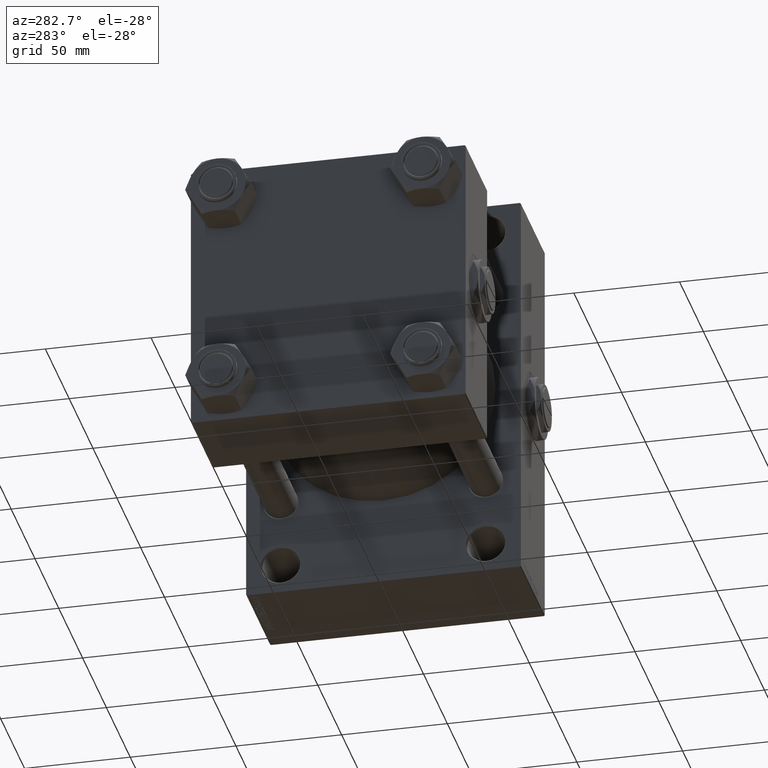
[diagram: clean part render]
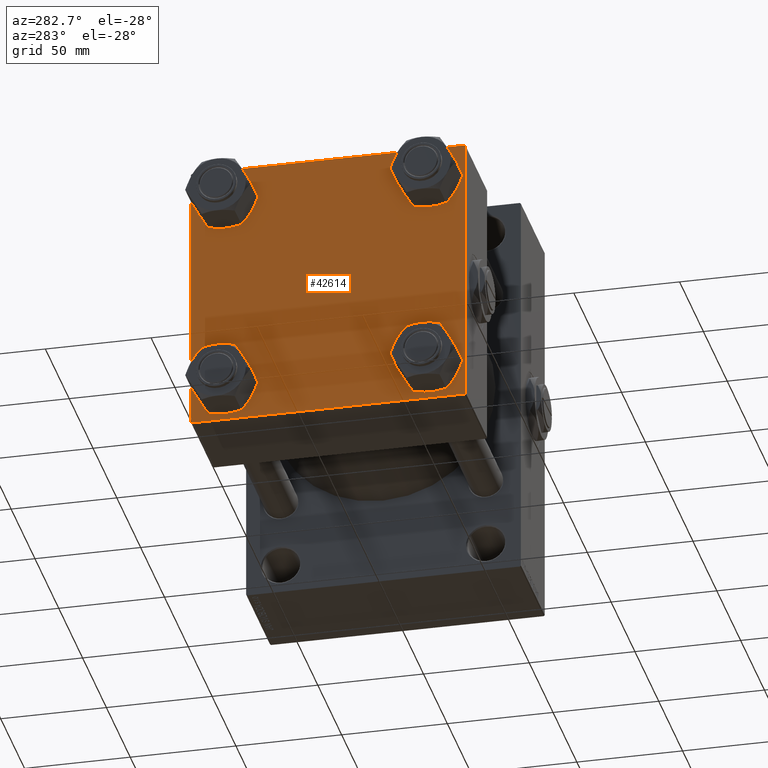
[diagram: same view with one face highlighted and labeled with its STEP entity id]
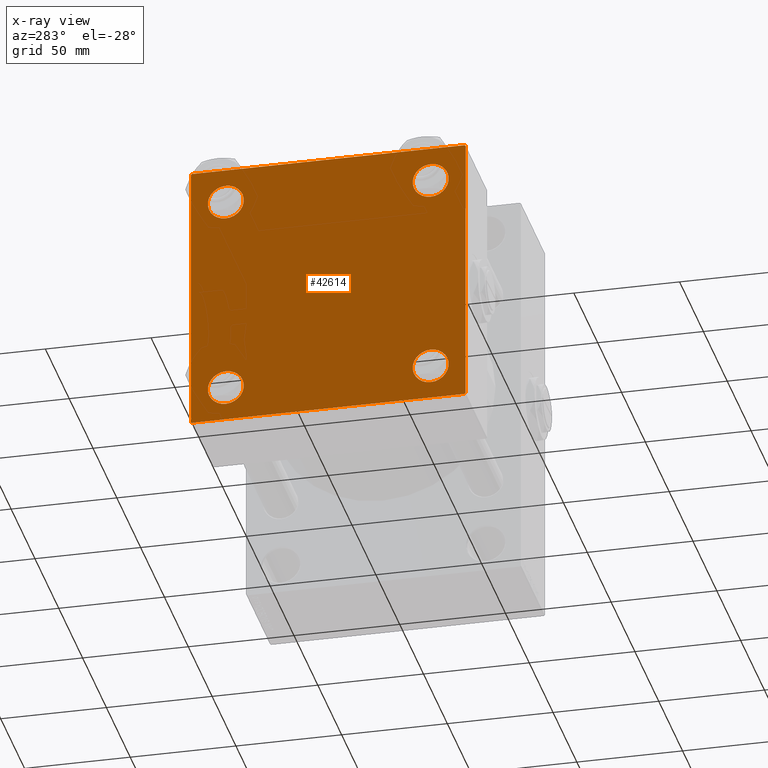
[diagram: x-ray of the same camera — body ghosted, the highlighted face saturated]
A machine part, auxiliary view. The second image highlights one B-rep face of the part: STEP entity #42614.
The next image is the same camera in x-ray: the body ghosted, the highlighted face saturated — about 0% of this face is hidden behind the body in this view.
In plain terms, the highlighted planar face has unit normal (-1, 0, 0).
Its self-contained STEP definition (entity closure, byte-faithful):
#970 = DIRECTION ( 'NONE',  ( 0.000000000000000000, -0.7071067811865279218, 0.7071067811865671127 ) ) ;
#1504 = AXIS2_PLACEMENT_3D ( 'NONE', #30231, #46076, #26449 ) ;
#1664 = VERTEX_POINT ( 'NONE', #6460 ) ;
#2142 = DIRECTION ( 'NONE',  ( 0.000000000000000000, 0.000000000000000000, 1.000000000000000000 ) ) ;
#2367 = VECTOR ( 'NONE', #970, 1000.000000000000000 ) ;
#2704 = CARTESIAN_POINT ( 'NONE',  ( 0.000000000000000000, 0.000000000000000000, 0.000000000000000000 ) ) ;
#2939 = CARTESIAN_POINT ( 'NONE',  ( 0.000000000000000000, -64.49999999999994316, -65.00000000000000000 ) ) ;
#2962 = DIRECTION ( 'NONE',  ( 1.000000000000000000, -0.000000000000000000, 0.000000000000000000 ) ) ;
#3183 = VERTEX_POINT ( 'NONE', #7844 ) ;
#3271 = EDGE_CURVE ( 'NONE', #3752, #20294, #20390, .T. ) ;
#3752 = VERTEX_POINT ( 'NONE', #30886 ) ;
#4630 = AXIS2_PLACEMENT_3D ( 'NONE', #2704, #37921, #34405 ) ;
#4949 = ORIENTED_EDGE ( 'NONE', *, *, #5387, .T. ) ;
#5387 = EDGE_CURVE ( 'NONE', #43437, #25798, #5936, .T. ) ;
#5936 = CIRCLE ( 'NONE', #43746, 8.500000000000007105 ) ;
#6001 = DIRECTION ( 'NONE',  ( 1.000000000000000000, -0.000000000000000000, 0.000000000000000000 ) ) ;
#6460 = CARTESIAN_POINT ( 'NONE',  ( 0.000000000000000000, 48.45000000000000995, -56.95000000000002416 ) ) ;
#6479 = FACE_BOUND ( 'NONE', #35804, .T. ) ;
#6984 = FACE_OUTER_BOUND ( 'NONE', #31242, .T. ) ;
#7107 = ORIENTED_EDGE ( 'NONE', *, *, #17164, .T. ) ;
#7750 = AXIS2_PLACEMENT_3D ( 'NONE', #36356, #43923, #31589 ) ;
#7844 = CARTESIAN_POINT ( 'NONE',  ( 0.000000000000000000, -65.00000000000000000, 64.50000000000000000 ) ) ;
#7858 = VERTEX_POINT ( 'NONE', #37650 ) ;
#8442 = ORIENTED_EDGE ( 'NONE', *, *, #38277, .T. ) ;
#8612 = VECTOR ( 'NONE', #9486, 1000.000000000000114 ) ;
#9071 = DIRECTION ( 'NONE',  ( 0.000000000000000000, 0.000000000000000000, -1.000000000000000000 ) ) ;
#9119 = DIRECTION ( 'NONE',  ( 0.000000000000000000, 0.000000000000000000, 1.000000000000000000 ) ) ;
#9132 = CARTESIAN_POINT ( 'NONE',  ( 0.000000000000000000, 64.49999999999997158, 65.00000000000001421 ) ) ;
#9486 = DIRECTION ( 'NONE',  ( 0.000000000000000000, 0.7071067811865474617, -0.7071067811865474617 ) ) ;
#9811 = CIRCLE ( 'NONE', #41157, 8.500000000000007105 ) ;
#9925 = EDGE_CURVE ( 'NONE', #47603, #14036, #48673, .T. ) ;
#10310 = VERTEX_POINT ( 'NONE', #2939 ) ;
#10414 = CARTESIAN_POINT ( 'NONE',  ( 0.000000000000000000, 48.45000000000000995, 39.95000000000000284 ) ) ;
#10497 = CARTESIAN_POINT ( 'NONE',  ( 0.000000000000000000, 48.45000000000000995, 48.45000000000001705 ) ) ;
#10644 = ORIENTED_EDGE ( 'NONE', *, *, #11951, .T. ) ;
#11201 = EDGE_CURVE ( 'NONE', #25798, #43437, #18981, .T. ) ;
#11951 = EDGE_CURVE ( 'NONE', #48811, #3752, #21049, .T. ) ;
#12811 = LINE ( 'NONE', #28417, #2367 ) ;
#13274 = LINE ( 'NONE', #21555, #37261 ) ;
#13387 = LINE ( 'NONE', #28750, #44099 ) ;
#13392 = EDGE_CURVE ( 'NONE', #30499, #38853, #27221, .T. ) ;
#13640 = CARTESIAN_POINT ( 'NONE',  ( 0.000000000000000000, -48.44999999999999574, -48.45000000000003126 ) ) ;
#13649 = CARTESIAN_POINT ( 'NONE',  ( 0.000000000000000000, 48.45000000000000995, 48.45000000000001705 ) ) ;
#13763 = DIRECTION ( 'NONE',  ( 0.000000000000000000, 0.000000000000000000, -1.000000000000000000 ) ) ;
#13956 = CARTESIAN_POINT ( 'NONE',  ( 0.000000000000000000, -48.44999999999999574, -48.45000000000003126 ) ) ;
#14035 = FACE_BOUND ( 'NONE', #38031, .T. ) ;
#14036 = VERTEX_POINT ( 'NONE', #42156 ) ;
#14039 = DIRECTION ( 'NONE',  ( 0.000000000000000000, 0.000000000000000000, 1.000000000000000000 ) ) ;
#15450 = CARTESIAN_POINT ( 'NONE',  ( 0.000000000000000000, -48.44999999999999574, 39.95000000000001705 ) ) ;
#15457 = ORIENTED_EDGE ( 'NONE', *, *, #11201, .T. ) ;
#16401 = VECTOR ( 'NONE', #9071, 1000.000000000000000 ) ;
#16480 = CARTESIAN_POINT ( 'NONE',  ( 0.000000000000000000, 64.49999999999997158, -64.99999999999998579 ) ) ;
#17164 = EDGE_CURVE ( 'NONE', #14036, #47603, #9811, .T. ) ;
#17447 = LINE ( 'NONE', #17689, #28512 ) ;
#17689 = CARTESIAN_POINT ( 'NONE',  ( 0.000000000000000000, 65.00000000000000000, -64.99999999999998579 ) ) ;
#17726 = DIRECTION ( 'NONE',  ( 1.000000000000000000, -0.000000000000000000, 0.000000000000000000 ) ) ;
#18166 = EDGE_CURVE ( 'NONE', #41685, #1664, #39611, .T. ) ;
#18296 = DIRECTION ( 'NONE',  ( 0.000000000000000000, 0.000000000000000000, 1.000000000000000000 ) ) ;
#18592 = EDGE_CURVE ( 'NONE', #3183, #7858, #41172, .T. ) ;
#18681 = ORIENTED_EDGE ( 'NONE', *, *, #18166, .T. ) ;
#18981 = CIRCLE ( 'NONE', #7750, 8.500000000000007105 ) ;
#19106 = DIRECTION ( 'NONE',  ( 0.000000000000000000, 0.000000000000000000, 1.000000000000000000 ) ) ;
#20009 = CARTESIAN_POINT ( 'NONE',  ( 0.000000000000000000, -48.44999999999999574, -56.95000000000003837 ) ) ;
#20294 = VERTEX_POINT ( 'NONE', #29620 ) ;
#20308 = CARTESIAN_POINT ( 'NONE',  ( 0.000000000000000000, 64.74999999999998579, 64.74999999999998579 ) ) ;
#20390 = LINE ( 'NONE', #24669, #16401 ) ;
#20398 = CARTESIAN_POINT ( 'NONE',  ( 0.000000000000000000, -48.44999999999999574, -39.95000000000001705 ) ) ;
#20597 = CARTESIAN_POINT ( 'NONE',  ( 0.000000000000000000, -48.44999999999999574, 56.95000000000003837 ) ) ;
#21049 = LINE ( 'NONE', #20308, #8612 ) ;
#21536 = DIRECTION ( 'NONE',  ( -0.000000000000000000, 0.7071067811865672237, 0.7071067811865279218 ) ) ;
#21555 = CARTESIAN_POINT ( 'NONE',  ( 0.000000000000000000, -65.00000000000000000, 65.00000000000000000 ) ) ;
#21816 = FACE_BOUND ( 'NONE', #44506, .T. ) ;
#21877 = LINE ( 'NONE', #29949, #22213 ) ;
#22213 = VECTOR ( 'NONE', #37984, 1000.000000000000000 ) ;
#22314 = FACE_BOUND ( 'NONE', #35763, .T. ) ;
#22355 = CIRCLE ( 'NONE', #49716, 8.500000000000007105 ) ;
#22726 = VECTOR ( 'NONE', #21536, 1000.000000000000000 ) ;
#23422 = EDGE_CURVE ( 'NONE', #3183, #25314, #13274, .T. ) ;
#24240 = ORIENTED_EDGE ( 'NONE', *, *, #26038, .T. ) ;
#24669 = CARTESIAN_POINT ( 'NONE',  ( 0.000000000000000000, 65.00000000000000000, 65.00000000000001421 ) ) ;
#24824 = CIRCLE ( 'NONE', #1504, 8.500000000000007105 ) ;
#25314 = VERTEX_POINT ( 'NONE', #41152 ) ;
#25798 = VERTEX_POINT ( 'NONE', #15450 ) ;
#26038 = EDGE_CURVE ( 'NONE', #47490, #10310, #17447, .T. ) ;
#26449 = DIRECTION ( 'NONE',  ( 0.000000000000000000, 0.000000000000000000, 1.000000000000000000 ) ) ;
#26683 = ORIENTED_EDGE ( 'NONE', *, *, #38433, .T. ) ;
#27221 = CIRCLE ( 'NONE', #40073, 8.500000000000007105 ) ;
#27992 = ORIENTED_EDGE ( 'NONE', *, *, #13392, .T. ) ;
#28417 = CARTESIAN_POINT ( 'NONE',  ( 0.000000000000000000, -64.75000000000176215, -64.74999999999816680 ) ) ;
#28512 = VECTOR ( 'NONE', #32816, 1000.000000000000000 ) ;
#28750 = CARTESIAN_POINT ( 'NONE',  ( 0.000000000000000000, 64.74999999999997158, -64.74999999999997158 ) ) ;
#29399 = PLANE ( 'NONE',  #4630 ) ;
#29620 = CARTESIAN_POINT ( 'NONE',  ( 0.000000000000000000, 65.00000000000000000, -64.49999999999995737 ) ) ;
#29949 = CARTESIAN_POINT ( 'NONE',  ( 0.000000000000000000, 65.00000000000000000, 65.00000000000001421 ) ) ;
#30215 = DIRECTION ( 'NONE',  ( 1.000000000000000000, -0.000000000000000000, 0.000000000000000000 ) ) ;
#30231 = CARTESIAN_POINT ( 'NONE',  ( 0.000000000000000000, 48.45000000000000995, -48.45000000000001705 ) ) ;
#30499 = VERTEX_POINT ( 'NONE', #20398 ) ;
#30781 = EDGE_CURVE ( 'NONE', #48811, #7858, #21877, .T. ) ;
#30886 = CARTESIAN_POINT ( 'NONE',  ( 0.000000000000000000, 65.00000000000000000, 64.49999999999998579 ) ) ;
#31242 = EDGE_LOOP ( 'NONE', ( #37435, #8442, #24240, #47571, #41617, #36379, #49281, #10644 ) ) ;
#31589 = DIRECTION ( 'NONE',  ( 0.000000000000000000, 0.000000000000000000, 1.000000000000000000 ) ) ;
#32041 = DIRECTION ( 'NONE',  ( 0.000000000000000000, 0.000000000000000000, 1.000000000000000000 ) ) ;
#32816 = DIRECTION ( 'NONE',  ( 0.000000000000000000, -1.000000000000000000, -1.067522139062650425E-16 ) ) ;
#34405 = DIRECTION ( 'NONE',  ( -0.000000000000000000, 0.000000000000000000, 1.000000000000000000 ) ) ;
#35763 = EDGE_LOOP ( 'NONE', ( #18681, #26683 ) ) ;
#35804 = EDGE_LOOP ( 'NONE', ( #27992, #37982 ) ) ;
#36356 = CARTESIAN_POINT ( 'NONE',  ( 0.000000000000000000, -48.44999999999999574, 48.45000000000003126 ) ) ;
#36379 = ORIENTED_EDGE ( 'NONE', *, *, #18592, .T. ) ;
#37261 = VECTOR ( 'NONE', #13763, 1000.000000000000000 ) ;
#37435 = ORIENTED_EDGE ( 'NONE', *, *, #3271, .T. ) ;
#37451 = CARTESIAN_POINT ( 'NONE',  ( 0.000000000000000000, 48.45000000000000995, -48.45000000000001705 ) ) ;
#37650 = CARTESIAN_POINT ( 'NONE',  ( 0.000000000000000000, -64.49999999999997158, 65.00000000000000000 ) ) ;
#37921 = DIRECTION ( 'NONE',  ( -1.000000000000000000, 0.000000000000000000, -0.000000000000000000 ) ) ;
#37982 = ORIENTED_EDGE ( 'NONE', *, *, #45203, .T. ) ;
#37984 = DIRECTION ( 'NONE',  ( 0.000000000000000000, -1.000000000000000000, -1.067522139062650425E-16 ) ) ;
#38031 = EDGE_LOOP ( 'NONE', ( #4949, #15457 ) ) ;
#38277 = EDGE_CURVE ( 'NONE', #20294, #47490, #13387, .T. ) ;
#38433 = EDGE_CURVE ( 'NONE', #1664, #41685, #24824, .T. ) ;
#38853 = VERTEX_POINT ( 'NONE', #20009 ) ;
#39611 = CIRCLE ( 'NONE', #45213, 8.500000000000007105 ) ;
#40073 = AXIS2_PLACEMENT_3D ( 'NONE', #13640, #43128, #9119 ) ;
#40463 = EDGE_CURVE ( 'NONE', #10310, #25314, #12811, .T. ) ;
#40586 = DIRECTION ( 'NONE',  ( 1.000000000000000000, -0.000000000000000000, 0.000000000000000000 ) ) ;
#41152 = CARTESIAN_POINT ( 'NONE',  ( 0.000000000000000000, -65.00000000000000000, -64.49999999999991473 ) ) ;
#41157 = AXIS2_PLACEMENT_3D ( 'NONE', #10497, #6001, #14039 ) ;
#41172 = LINE ( 'NONE', #49198, #22726 ) ;
#41537 = CARTESIAN_POINT ( 'NONE',  ( 0.000000000000000000, 48.45000000000000995, -39.95000000000000284 ) ) ;
#41617 = ORIENTED_EDGE ( 'NONE', *, *, #23422, .F. ) ;
#41685 = VERTEX_POINT ( 'NONE', #41537 ) ;
#42156 = CARTESIAN_POINT ( 'NONE',  ( 0.000000000000000000, 48.45000000000000995, 56.95000000000002416 ) ) ;
#42614 = ADVANCED_FACE ( 'NONE', ( #14035, #6479, #22314, #21816, #6984 ), #29399, .T. ) ;
#42793 = CARTESIAN_POINT ( 'NONE',  ( 0.000000000000000000, -48.44999999999999574, 48.45000000000003126 ) ) ;
#43128 = DIRECTION ( 'NONE',  ( 1.000000000000000000, -0.000000000000000000, 0.000000000000000000 ) ) ;
#43437 = VERTEX_POINT ( 'NONE', #20597 ) ;
#43746 = AXIS2_PLACEMENT_3D ( 'NONE', #42793, #30215, #19106 ) ;
#43923 = DIRECTION ( 'NONE',  ( 1.000000000000000000, -0.000000000000000000, 0.000000000000000000 ) ) ;
#43929 = AXIS2_PLACEMENT_3D ( 'NONE', #13649, #40586, #32041 ) ;
#44099 = VECTOR ( 'NONE', #44109, 1000.000000000000114 ) ;
#44109 = DIRECTION ( 'NONE',  ( -0.000000000000000000, -0.7071067811865474617, -0.7071067811865474617 ) ) ;
#44506 = EDGE_LOOP ( 'NONE', ( #7107, #45509 ) ) ;
#45203 = EDGE_CURVE ( 'NONE', #38853, #30499, #22355, .T. ) ;
#45213 = AXIS2_PLACEMENT_3D ( 'NONE', #37451, #2962, #18296 ) ;
#45509 = ORIENTED_EDGE ( 'NONE', *, *, #9925, .T. ) ;
#46076 = DIRECTION ( 'NONE',  ( 1.000000000000000000, -0.000000000000000000, 0.000000000000000000 ) ) ;
#47490 = VERTEX_POINT ( 'NONE', #16480 ) ;
#47571 = ORIENTED_EDGE ( 'NONE', *, *, #40463, .T. ) ;
#47603 = VERTEX_POINT ( 'NONE', #10414 ) ;
#48673 = CIRCLE ( 'NONE', #43929, 8.500000000000007105 ) ;
#48811 = VERTEX_POINT ( 'NONE', #9132 ) ;
#49198 = CARTESIAN_POINT ( 'NONE',  ( -0.000000000000000000, -64.74999999999819522, 64.75000000000179057 ) ) ;
#49281 = ORIENTED_EDGE ( 'NONE', *, *, #30781, .F. ) ;
#49716 = AXIS2_PLACEMENT_3D ( 'NONE', #13956, #17726, #2142 ) ;